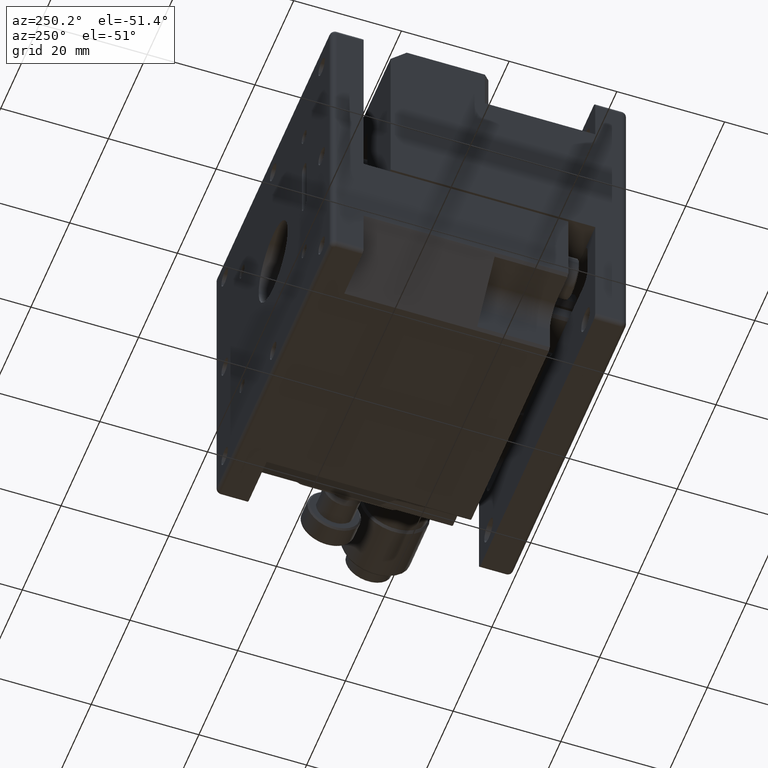
[diagram: clean part render]
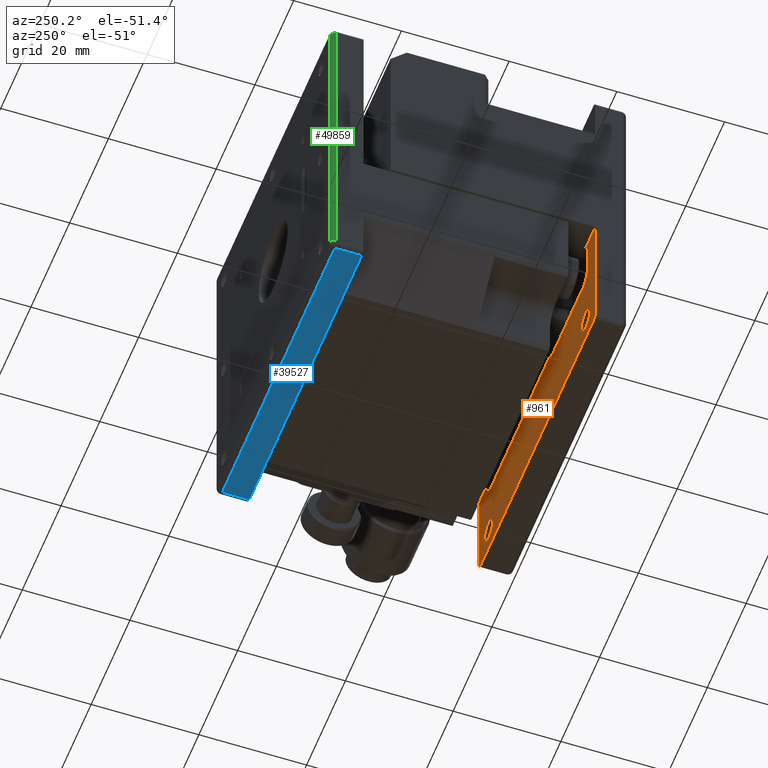
[diagram: same view with three faces highlighted in distinct colors, each labeled with its STEP entity id]
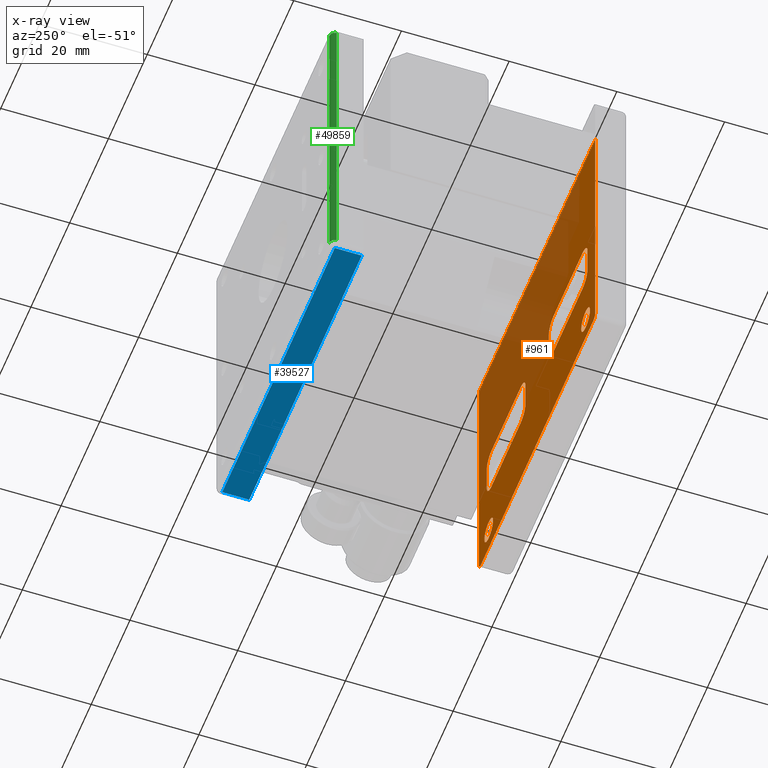
[diagram: x-ray of the same camera — body ghosted, the three highlighted faces saturated]
A machine part, auxiliary view with three faces highlighted in distinct colors.
The next image is the same camera in x-ray (body ghosted, the three faces saturated) — at least one of them is partly hidden behind the body in this view.
Their STEP definitions:

[orange] entity #961 — the highlighted planar face has unit normal (-0, 1, 0).
#617 = CARTESIAN_POINT ( 'NONE',  ( 6.000000000000000000, 6.000000000000000000, -12.00000000000000000 ) ) ;
#633 = DIRECTION ( 'NONE',  ( -5.782411586589359857E-17, 0.000000000000000000, -1.000000000000000000 ) ) ;
#856 = VERTEX_POINT ( 'NONE', #31616 ) ;
#959 = ORIENTED_EDGE ( 'NONE', *, *, #52561, .F. ) ;
#961 = ADVANCED_FACE ( 'NONE', ( #36105, #8083, #22087, #39988, #44758 ), #53394, .T. ) ;
#1074 = CARTESIAN_POINT ( 'NONE',  ( -30.00000000000000355, 6.000000000000000000, 19.50000000000000355 ) ) ;
#1132 = EDGE_CURVE ( 'NONE', #16642, #33232, #28963, .T. ) ;
#1443 = VERTEX_POINT ( 'NONE', #31354 ) ;
#1544 = ORIENTED_EDGE ( 'NONE', *, *, #6009, .F. ) ;
#1624 = VERTEX_POINT ( 'NONE', #10733 ) ;
#1665 = CARTESIAN_POINT ( 'NONE',  ( 8.500000000000000000, 6.000000000000000000, -12.00000000000000000 ) ) ;
#1955 = LINE ( 'NONE', #42256, #31972 ) ;
#2032 = DIRECTION ( 'NONE',  ( -1.000000000000000000, -1.665334536937734811E-16, 1.427168086415900007E-30 ) ) ;
#2075 = DIRECTION ( 'NONE',  ( 0.000000000000000000, 0.000000000000000000, -1.000000000000000000 ) ) ;
#2087 = CIRCLE ( 'NONE', #31660, 1.000000000000000888 ) ;
#2114 = EDGE_CURVE ( 'NONE', #51014, #24553, #54937, .T. ) ;
#2167 = DIRECTION ( 'NONE',  ( 0.000000000000000000, 1.000000000000000000, 0.000000000000000000 ) ) ;
#2366 = AXIS2_PLACEMENT_3D ( 'NONE', #47432, #43856, #48015 ) ;
#2672 = ORIENTED_EDGE ( 'NONE', *, *, #11808, .F. ) ;
#2923 = DIRECTION ( 'NONE',  ( 0.000000000000000000, 0.000000000000000000, -1.000000000000000000 ) ) ;
#3609 = CARTESIAN_POINT ( 'NONE',  ( 23.50000000000000000, 6.000000000000000000, -7.000000000000000000 ) ) ;
#3615 = DIRECTION ( 'NONE',  ( 0.000000000000000000, 0.000000000000000000, 1.000000000000000000 ) ) ;
#3880 = DIRECTION ( 'NONE',  ( -0.000000000000000000, 1.000000000000000000, 0.000000000000000000 ) ) ;
#4785 = ORIENTED_EDGE ( 'NONE', *, *, #56973, .T. ) ;
#5195 = VERTEX_POINT ( 'NONE', #23231 ) ;
#5200 = CARTESIAN_POINT ( 'NONE',  ( 23.50000000000000000, 6.000000000000000000, -4.500000000000059508 ) ) ;
#5697 = VERTEX_POINT ( 'NONE', #35756 ) ;
#5831 = VERTEX_POINT ( 'NONE', #42411 ) ;
#6009 = EDGE_CURVE ( 'NONE', #31480, #9222, #51927, .T. ) ;
#6465 = LINE ( 'NONE', #33599, #7922 ) ;
#6498 = ORIENTED_EDGE ( 'NONE', *, *, #36185, .F. ) ;
#6531 = LINE ( 'NONE', #42909, #35321 ) ;
#7136 = CIRCLE ( 'NONE', #40482, 2.249999999999998668 ) ;
#7922 = VECTOR ( 'NONE', #34187, 1000.000000000000000 ) ;
#7974 = EDGE_CURVE ( 'NONE', #20508, #5697, #2087, .T. ) ;
#8083 = FACE_BOUND ( 'NONE', #31322, .T. ) ;
#8101 = ORIENTED_EDGE ( 'NONE', *, *, #17931, .F. ) ;
#8102 = DIRECTION ( 'NONE',  ( 0.000000000000000000, 1.000000000000000000, 0.000000000000000000 ) ) ;
#8175 = CARTESIAN_POINT ( 'NONE',  ( -23.50000000000000000, 6.000000000000000000, -14.50000000000000000 ) ) ;
#8358 = VERTEX_POINT ( 'NONE', #26815 ) ;
#8841 = CARTESIAN_POINT ( 'NONE',  ( 23.50000000000000000, 6.000000000000000000, -14.50000000000000000 ) ) ;
#9048 = VERTEX_POINT ( 'NONE', #44809 ) ;
#9222 = VERTEX_POINT ( 'NONE', #29144 ) ;
#9298 = LINE ( 'NONE', #22723, #23663 ) ;
#10001 = CARTESIAN_POINT ( 'NONE',  ( -26.00000000000000000, 6.000000000000000000, -12.00000000000000000 ) ) ;
#10081 = ORIENTED_EDGE ( 'NONE', *, *, #28182, .F. ) ;
#10395 = ORIENTED_EDGE ( 'NONE', *, *, #52731, .T. ) ;
#10422 = DIRECTION ( 'NONE',  ( -5.782411586589359857E-17, 0.000000000000000000, 1.000000000000000000 ) ) ;
#10532 = CARTESIAN_POINT ( 'NONE',  ( -6.000000000000000000, 6.000000000000000000, -12.00000000000000000 ) ) ;
#10645 = EDGE_CURVE ( 'NONE', #9048, #31480, #36234, .T. ) ;
#10733 = CARTESIAN_POINT ( 'NONE',  ( 6.000000000000000000, 6.000000000000000000, -7.000000000000000000 ) ) ;
#10766 = CIRCLE ( 'NONE', #52706, 2.500000000000000444 ) ;
#10984 = CARTESIAN_POINT ( 'NONE',  ( -23.50000000000000000, 6.000000000000000000, -12.00000000000000000 ) ) ;
#11273 = EDGE_LOOP ( 'NONE', ( #6498, #54594, #38344, #45967, #17905, #51766, #36612, #49857 ) ) ;
#11808 = EDGE_CURVE ( 'NONE', #1624, #9048, #25231, .T. ) ;
#12061 = AXIS2_PLACEMENT_3D ( 'NONE', #43042, #2167, #33789 ) ;
#13102 = EDGE_CURVE ( 'NONE', #34267, #16642, #1955, .T. ) ;
#13276 = DIRECTION ( 'NONE',  ( 0.000000000000000000, 0.000000000000000000, 1.000000000000000000 ) ) ;
#13328 = VECTOR ( 'NONE', #37019, 1000.000000000000000 ) ;
#13330 = CARTESIAN_POINT ( 'NONE',  ( -23.50000000000000000, 6.000000000000000000, -7.000000000000000000 ) ) ;
#13423 = CARTESIAN_POINT ( 'NONE',  ( -26.00000000000000000, 6.000000000000000000, -12.00000000000000000 ) ) ;
#13632 = AXIS2_PLACEMENT_3D ( 'NONE', #16744, #8102, #3615 ) ;
#13885 = EDGE_CURVE ( 'NONE', #24553, #1443, #30748, .T. ) ;
#14192 = EDGE_CURVE ( 'NONE', #34364, #5195, #44292, .T. ) ;
#15658 = AXIS2_PLACEMENT_3D ( 'NONE', #10984, #47365, #2923 ) ;
#15887 = CARTESIAN_POINT ( 'NONE',  ( -30.00000000000000000, 6.000000000000000000, -30.00000000000000000 ) ) ;
#16500 = LINE ( 'NONE', #13423, #32842 ) ;
#16633 = AXIS2_PLACEMENT_3D ( 'NONE', #27134, #3880, #45342 ) ;
#16642 = VERTEX_POINT ( 'NONE', #8175 ) ;
#16744 = CARTESIAN_POINT ( 'NONE',  ( -25.00000000000000000, 6.000000000000000000, -25.00000000000000000 ) ) ;
#16807 = CIRCLE ( 'NONE', #40614, 1.000000000000000888 ) ;
#16837 = VECTOR ( 'NONE', #633, 1000.000000000000000 ) ;
#17149 = EDGE_LOOP ( 'NONE', ( #10081, #25499, #1544, #19358, #2672, #33930, #31852, #48022 ) ) ;
#17155 = DIRECTION ( 'NONE',  ( 0.000000000000000000, 1.000000000000000000, 0.000000000000000000 ) ) ;
#17184 = DIRECTION ( 'NONE',  ( 0.000000000000000000, 1.000000000000000000, 0.000000000000000000 ) ) ;
#17374 = CARTESIAN_POINT ( 'NONE',  ( 30.00000000000000355, 6.000000000000000000, 19.50000000000000355 ) ) ;
#17510 = DIRECTION ( 'NONE',  ( 0.000000000000000000, 1.000000000000000000, 0.000000000000000000 ) ) ;
#17692 = VECTOR ( 'NONE', #46378, 1000.000000000000000 ) ;
#17905 = ORIENTED_EDGE ( 'NONE', *, *, #2114, .F. ) ;
#17931 = EDGE_CURVE ( 'NONE', #44964, #53875, #6531, .T. ) ;
#18074 = LINE ( 'NONE', #8841, #17692 ) ;
#18168 = ORIENTED_EDGE ( 'NONE', *, *, #53347, .T. ) ;
#18192 = EDGE_LOOP ( 'NONE', ( #40844, #42029 ) ) ;
#18389 = EDGE_CURVE ( 'NONE', #856, #32609, #32252, .T. ) ;
#19358 = ORIENTED_EDGE ( 'NONE', *, *, #10645, .F. ) ;
#19665 = CARTESIAN_POINT ( 'NONE',  ( -30.00000000000000000, 6.000000000000000000, -30.00000000000000000 ) ) ;
#20508 = VERTEX_POINT ( 'NONE', #22782 ) ;
#20573 = CARTESIAN_POINT ( 'NONE',  ( -8.500000000000000000, 6.000000000000000000, -7.000000000000000000 ) ) ;
#20909 = CARTESIAN_POINT ( 'NONE',  ( -23.50000000000000000, 6.000000000000000000, -4.500000000000000000 ) ) ;
#21041 = EDGE_CURVE ( 'NONE', #32609, #1624, #23297, .T. ) ;
#21513 = DIRECTION ( 'NONE',  ( 0.000000000000000000, 0.000000000000000000, 1.000000000000000000 ) ) ;
#21785 = AXIS2_PLACEMENT_3D ( 'NONE', #1665, #42254, #41384 ) ;
#22087 = FACE_BOUND ( 'NONE', #17149, .T. ) ;
#22193 = CARTESIAN_POINT ( 'NONE',  ( 23.50000000000000000, 6.000000000000000000, -4.500000000000059508 ) ) ;
#22211 = EDGE_CURVE ( 'NONE', #1443, #53644, #40070, .T. ) ;
#22397 = DIRECTION ( 'NONE',  ( 0.000000000000000000, 1.000000000000000000, 0.000000000000000000 ) ) ;
#22517 = DIRECTION ( 'NONE',  ( 1.000000000000000000, 0.000000000000000000, 2.312964634635744929E-16 ) ) ;
#22723 = CARTESIAN_POINT ( 'NONE',  ( 26.00000000000000000, 6.000000000000000000, -12.00000000000000000 ) ) ;
#22782 = CARTESIAN_POINT ( 'NONE',  ( -29.00000000000000000, 6.000000000000000000, -30.00000000000000000 ) ) ;
#23178 = DIRECTION ( 'NONE',  ( 0.000000000000000000, 0.000000000000000000, 1.000000000000000000 ) ) ;
#23231 = CARTESIAN_POINT ( 'NONE',  ( 25.00000000000000000, 6.000000000000000000, -22.75000000000000000 ) ) ;
#23297 = LINE ( 'NONE', #617, #13328 ) ;
#23311 = LINE ( 'NONE', #32840, #16837 ) ;
#23511 = AXIS2_PLACEMENT_3D ( 'NONE', #13330, #17510, #31512 ) ;
#23663 = VECTOR ( 'NONE', #36151, 1000.000000000000000 ) ;
#23704 = DIRECTION ( 'NONE',  ( 0.000000000000000000, 0.000000000000000000, 1.000000000000000000 ) ) ;
#24553 = VERTEX_POINT ( 'NONE', #42560 ) ;
#25231 = CIRCLE ( 'NONE', #2366, 2.499999999999999556 ) ;
#25499 = ORIENTED_EDGE ( 'NONE', *, *, #57265, .F. ) ;
#26067 = CARTESIAN_POINT ( 'NONE',  ( 23.50000000000000000, 6.000000000000000000, -14.50000000000000000 ) ) ;
#26181 = AXIS2_PLACEMENT_3D ( 'NONE', #40717, #17155, #13276 ) ;
#26433 = CARTESIAN_POINT ( 'NONE',  ( 23.50000000000000000, 6.000000000000000000, -12.00000000000000000 ) ) ;
#26815 = CARTESIAN_POINT ( 'NONE',  ( -25.00000000000000000, 6.000000000000000000, -22.75000000000000000 ) ) ;
#27037 = CARTESIAN_POINT ( 'NONE',  ( -8.500000000000000000, 6.000000000000000000, -14.50000000000000000 ) ) ;
#27134 = CARTESIAN_POINT ( 'NONE',  ( -30.00000000000000000, 6.000000000000000000, 30.00000000000000000 ) ) ;
#27305 = CIRCLE ( 'NONE', #12061, 2.249999999999998668 ) ;
#28119 = AXIS2_PLACEMENT_3D ( 'NONE', #3609, #22397, #21513 ) ;
#28182 = EDGE_CURVE ( 'NONE', #40015, #37480, #54435, .T. ) ;
#28338 = VERTEX_POINT ( 'NONE', #45793 ) ;
#28963 = CIRCLE ( 'NONE', #15658, 2.500000000000000444 ) ;
#29144 = CARTESIAN_POINT ( 'NONE',  ( 26.00000000000000000, 6.000000000000000000, -7.000000000000000000 ) ) ;
#30748 = LINE ( 'NONE', #20909, #36669 ) ;
#30856 = VECTOR ( 'NONE', #22517, 1000.000000000000000 ) ;
#31322 = EDGE_LOOP ( 'NONE', ( #959, #41960 ) ) ;
#31354 = CARTESIAN_POINT ( 'NONE',  ( -8.500000000000000000, 6.000000000000000000, -4.500000000000000000 ) ) ;
#31480 = VERTEX_POINT ( 'NONE', #22193 ) ;
#31506 = AXIS2_PLACEMENT_3D ( 'NONE', #20573, #52777, #2075 ) ;
#31512 = DIRECTION ( 'NONE',  ( 0.000000000000000000, 0.000000000000000000, -1.000000000000000000 ) ) ;
#31616 = CARTESIAN_POINT ( 'NONE',  ( 8.500000000000000000, 6.000000000000000000, -14.50000000000000000 ) ) ;
#31660 = AXIS2_PLACEMENT_3D ( 'NONE', #39424, #57625, #34954 ) ;
#31852 = ORIENTED_EDGE ( 'NONE', *, *, #18389, .F. ) ;
#31972 = VECTOR ( 'NONE', #52663, 1000.000000000000000 ) ;
#32252 = CIRCLE ( 'NONE', #21785, 2.500000000000000444 ) ;
#32609 = VERTEX_POINT ( 'NONE', #33168 ) ;
#32731 = CARTESIAN_POINT ( 'NONE',  ( -26.00000000000000000, 6.000000000000000000, -7.000000000000000000 ) ) ;
#32812 = ORIENTED_EDGE ( 'NONE', *, *, #38994, .T. ) ;
#32840 = CARTESIAN_POINT ( 'NONE',  ( 30.00000000000000000, 6.000000000000000000, -30.00000000000000000 ) ) ;
#32842 = VECTOR ( 'NONE', #43353, 1000.000000000000000 ) ;
#33051 = VECTOR ( 'NONE', #10422, 1000.000000000000000 ) ;
#33168 = CARTESIAN_POINT ( 'NONE',  ( 6.000000000000000000, 6.000000000000000000, -12.00000000000000000 ) ) ;
#33232 = VERTEX_POINT ( 'NONE', #10001 ) ;
#33492 = LINE ( 'NONE', #15887, #55089 ) ;
#33599 = CARTESIAN_POINT ( 'NONE',  ( -6.000000000000000000, 6.000000000000000000, -12.00000000000000000 ) ) ;
#33789 = DIRECTION ( 'NONE',  ( 0.000000000000000000, 0.000000000000000000, 1.000000000000000000 ) ) ;
#33930 = ORIENTED_EDGE ( 'NONE', *, *, #21041, .F. ) ;
#34187 = DIRECTION ( 'NONE',  ( 0.000000000000000000, 0.000000000000000000, -1.000000000000000000 ) ) ;
#34267 = VERTEX_POINT ( 'NONE', #27037 ) ;
#34364 = VERTEX_POINT ( 'NONE', #55648 ) ;
#34954 = DIRECTION ( 'NONE',  ( 0.000000000000000000, 0.000000000000000000, 1.000000000000000000 ) ) ;
#35321 = VECTOR ( 'NONE', #2032, 1000.000000000000000 ) ;
#35756 = CARTESIAN_POINT ( 'NONE',  ( -30.00000000000000000, 6.000000000000000000, -29.00000000000000000 ) ) ;
#36105 = FACE_BOUND ( 'NONE', #18192, .T. ) ;
#36151 = DIRECTION ( 'NONE',  ( 0.000000000000000000, 0.000000000000000000, -1.000000000000000000 ) ) ;
#36185 = EDGE_CURVE ( 'NONE', #54223, #34267, #10766, .T. ) ;
#36234 = LINE ( 'NONE', #5200, #30856 ) ;
#36495 = EDGE_CURVE ( 'NONE', #8358, #28338, #38408, .T. ) ;
#36612 = ORIENTED_EDGE ( 'NONE', *, *, #1132, .F. ) ;
#36669 = VECTOR ( 'NONE', #39107, 1000.000000000000000 ) ;
#37019 = DIRECTION ( 'NONE',  ( 0.000000000000000000, 0.000000000000000000, 1.000000000000000000 ) ) ;
#37135 = CARTESIAN_POINT ( 'NONE',  ( -8.500000000000000000, 6.000000000000000000, -12.00000000000000000 ) ) ;
#37480 = VERTEX_POINT ( 'NONE', #26067 ) ;
#38344 = ORIENTED_EDGE ( 'NONE', *, *, #22211, .F. ) ;
#38408 = CIRCLE ( 'NONE', #13632, 2.249999999999998668 ) ;
#38575 = CARTESIAN_POINT ( 'NONE',  ( 30.00000000000000000, 6.000000000000000000, -29.00000000000000000 ) ) ;
#38994 = EDGE_CURVE ( 'NONE', #5697, #53875, #51870, .T. ) ;
#39107 = DIRECTION ( 'NONE',  ( 1.000000000000000000, 0.000000000000000000, -2.312964634635744929E-16 ) ) ;
#39424 = CARTESIAN_POINT ( 'NONE',  ( -29.00000000000000000, 6.000000000000000000, -29.00000000000000000 ) ) ;
#39988 = FACE_BOUND ( 'NONE', #11273, .T. ) ;
#40015 = VERTEX_POINT ( 'NONE', #54544 ) ;
#40070 = CIRCLE ( 'NONE', #31506, 2.499999999999999556 ) ;
#40482 = AXIS2_PLACEMENT_3D ( 'NONE', #55312, #46357, #58921 ) ;
#40614 = AXIS2_PLACEMENT_3D ( 'NONE', #55664, #45835, #23178 ) ;
#40717 = CARTESIAN_POINT ( 'NONE',  ( 25.00000000000000000, 6.000000000000000000, -25.00000000000000000 ) ) ;
#40844 = ORIENTED_EDGE ( 'NONE', *, *, #36495, .F. ) ;
#40927 = VERTEX_POINT ( 'NONE', #38575 ) ;
#41384 = DIRECTION ( 'NONE',  ( 0.000000000000000000, 0.000000000000000000, -1.000000000000000000 ) ) ;
#41960 = ORIENTED_EDGE ( 'NONE', *, *, #14192, .F. ) ;
#42029 = ORIENTED_EDGE ( 'NONE', *, *, #47486, .F. ) ;
#42135 = EDGE_LOOP ( 'NONE', ( #8101, #10395, #18168, #4785, #44973, #32812 ) ) ;
#42192 = DIRECTION ( 'NONE',  ( 0.000000000000000000, 1.000000000000000000, 0.000000000000000000 ) ) ;
#42254 = DIRECTION ( 'NONE',  ( 0.000000000000000000, 1.000000000000000000, 0.000000000000000000 ) ) ;
#42256 = CARTESIAN_POINT ( 'NONE',  ( -23.50000000000000000, 6.000000000000000000, -14.50000000000000000 ) ) ;
#42411 = CARTESIAN_POINT ( 'NONE',  ( 29.00000000000000000, 6.000000000000000000, -30.00000000000000000 ) ) ;
#42560 = CARTESIAN_POINT ( 'NONE',  ( -23.50000000000000000, 6.000000000000000000, -4.500000000000000000 ) ) ;
#42909 = CARTESIAN_POINT ( 'NONE',  ( 30.00000000000000000, 6.000000000000000000, 19.50000000000000000 ) ) ;
#43042 = CARTESIAN_POINT ( 'NONE',  ( 25.00000000000000000, 6.000000000000000000, -25.00000000000000000 ) ) ;
#43056 = EDGE_CURVE ( 'NONE', #53644, #54223, #6465, .T. ) ;
#43353 = DIRECTION ( 'NONE',  ( 0.000000000000000000, 0.000000000000000000, 1.000000000000000000 ) ) ;
#43856 = DIRECTION ( 'NONE',  ( 0.000000000000000000, 1.000000000000000000, 0.000000000000000000 ) ) ;
#44292 = CIRCLE ( 'NONE', #26181, 2.249999999999998668 ) ;
#44758 = FACE_OUTER_BOUND ( 'NONE', #42135, .T. ) ;
#44809 = CARTESIAN_POINT ( 'NONE',  ( 8.500000000000000000, 6.000000000000000000, -4.500000000000059508 ) ) ;
#44964 = VERTEX_POINT ( 'NONE', #17374 ) ;
#44973 = ORIENTED_EDGE ( 'NONE', *, *, #7974, .T. ) ;
#45050 = CARTESIAN_POINT ( 'NONE',  ( -6.000000000000000000, 6.000000000000000000, -7.000000000000000000 ) ) ;
#45342 = DIRECTION ( 'NONE',  ( 1.000000000000000000, 0.000000000000000000, 0.000000000000000000 ) ) ;
#45793 = CARTESIAN_POINT ( 'NONE',  ( -25.00000000000000000, 6.000000000000000000, -27.25000000000000000 ) ) ;
#45835 = DIRECTION ( 'NONE',  ( 0.000000000000000000, 1.000000000000000000, 0.000000000000000000 ) ) ;
#45967 = ORIENTED_EDGE ( 'NONE', *, *, #13885, .F. ) ;
#46357 = DIRECTION ( 'NONE',  ( 0.000000000000000000, 1.000000000000000000, 0.000000000000000000 ) ) ;
#46378 = DIRECTION ( 'NONE',  ( -1.000000000000000000, 0.000000000000000000, 0.000000000000000000 ) ) ;
#46960 = EDGE_CURVE ( 'NONE', #33232, #51014, #16500, .T. ) ;
#47365 = DIRECTION ( 'NONE',  ( 0.000000000000000000, 1.000000000000000000, 0.000000000000000000 ) ) ;
#47432 = CARTESIAN_POINT ( 'NONE',  ( 8.500000000000000000, 6.000000000000000000, -7.000000000000000000 ) ) ;
#47486 = EDGE_CURVE ( 'NONE', #28338, #8358, #7136, .T. ) ;
#48015 = DIRECTION ( 'NONE',  ( 0.000000000000000000, 0.000000000000000000, 1.000000000000000000 ) ) ;
#48022 = ORIENTED_EDGE ( 'NONE', *, *, #49130, .F. ) ;
#49130 = EDGE_CURVE ( 'NONE', #37480, #856, #18074, .T. ) ;
#49857 = ORIENTED_EDGE ( 'NONE', *, *, #13102, .F. ) ;
#51014 = VERTEX_POINT ( 'NONE', #32731 ) ;
#51570 = AXIS2_PLACEMENT_3D ( 'NONE', #26433, #17184, #57163 ) ;
#51766 = ORIENTED_EDGE ( 'NONE', *, *, #46960, .F. ) ;
#51870 = LINE ( 'NONE', #19665, #33051 ) ;
#51927 = CIRCLE ( 'NONE', #28119, 2.499999999999999556 ) ;
#51975 = DIRECTION ( 'NONE',  ( -1.000000000000000000, 0.000000000000000000, 0.000000000000000000 ) ) ;
#52561 = EDGE_CURVE ( 'NONE', #5195, #34364, #27305, .T. ) ;
#52663 = DIRECTION ( 'NONE',  ( -1.000000000000000000, 0.000000000000000000, 0.000000000000000000 ) ) ;
#52706 = AXIS2_PLACEMENT_3D ( 'NONE', #37135, #42192, #23704 ) ;
#52731 = EDGE_CURVE ( 'NONE', #44964, #40927, #23311, .T. ) ;
#52777 = DIRECTION ( 'NONE',  ( 0.000000000000000000, 1.000000000000000000, 0.000000000000000000 ) ) ;
#53347 = EDGE_CURVE ( 'NONE', #40927, #5831, #16807, .T. ) ;
#53394 = PLANE ( 'NONE',  #16633 ) ;
#53644 = VERTEX_POINT ( 'NONE', #45050 ) ;
#53875 = VERTEX_POINT ( 'NONE', #1074 ) ;
#54223 = VERTEX_POINT ( 'NONE', #10532 ) ;
#54435 = CIRCLE ( 'NONE', #51570, 2.500000000000000444 ) ;
#54544 = CARTESIAN_POINT ( 'NONE',  ( 26.00000000000000000, 6.000000000000000000, -12.00000000000000000 ) ) ;
#54594 = ORIENTED_EDGE ( 'NONE', *, *, #43056, .F. ) ;
#54937 = CIRCLE ( 'NONE', #23511, 2.499999999999999556 ) ;
#55089 = VECTOR ( 'NONE', #51975, 1000.000000000000000 ) ;
#55312 = CARTESIAN_POINT ( 'NONE',  ( -25.00000000000000000, 6.000000000000000000, -25.00000000000000000 ) ) ;
#55648 = CARTESIAN_POINT ( 'NONE',  ( 25.00000000000000000, 6.000000000000000000, -27.25000000000000000 ) ) ;
#55664 = CARTESIAN_POINT ( 'NONE',  ( 29.00000000000000000, 6.000000000000000000, -29.00000000000000000 ) ) ;
#56973 = EDGE_CURVE ( 'NONE', #5831, #20508, #33492, .T. ) ;
#57163 = DIRECTION ( 'NONE',  ( 0.000000000000000000, 0.000000000000000000, 1.000000000000000000 ) ) ;
#57265 = EDGE_CURVE ( 'NONE', #9222, #40015, #9298, .T. ) ;
#57625 = DIRECTION ( 'NONE',  ( 0.000000000000000000, 1.000000000000000000, 0.000000000000000000 ) ) ;
#58921 = DIRECTION ( 'NONE',  ( 0.000000000000000000, 0.000000000000000000, 1.000000000000000000 ) ) ;

[blue] entity #39527 — the highlighted planar face has unit normal (0, 0, 1).
#380 = DIRECTION ( 'NONE',  ( 1.000000000000000000, 0.000000000000000000, 0.000000000000000000 ) ) ;
#671 = DIRECTION ( 'NONE',  ( 0.000000000000000000, 0.000000000000000000, 1.000000000000000000 ) ) ;
#686 = CARTESIAN_POINT ( 'NONE',  ( -28.96428534805954769, 55.00000000000000000, -30.00000000000000000 ) ) ;
#1344 = EDGE_CURVE ( 'NONE', #21166, #28136, #11392, .T. ) ;
#5391 = CARTESIAN_POINT ( 'NONE',  ( 29.03571465194044876, 54.00000000000000000, -30.00000000000000000 ) ) ;
#6924 = VERTEX_POINT ( 'NONE', #27522 ) ;
#6943 = LINE ( 'NONE', #33488, #54954 ) ;
#9050 = PLANE ( 'NONE',  #13986 ) ;
#10132 = ORIENTED_EDGE ( 'NONE', *, *, #22712, .T. ) ;
#10886 = VECTOR ( 'NONE', #57923, 1000.000000000000000 ) ;
#11392 = LINE ( 'NONE', #34064, #10886 ) ;
#11648 = LINE ( 'NONE', #52501, #18805 ) ;
#13986 = AXIS2_PLACEMENT_3D ( 'NONE', #18580, #671, #380 ) ;
#17210 = CARTESIAN_POINT ( 'NONE',  ( 30.03571465194044876, 54.00000000000000000, -30.00000000000000000 ) ) ;
#18580 = CARTESIAN_POINT ( 'NONE',  ( -29.96428534805955124, 55.00000000000000000, -30.00000000000000000 ) ) ;
#18805 = VECTOR ( 'NONE', #30429, 1000.000000000000000 ) ;
#18945 = EDGE_CURVE ( 'NONE', #28136, #42149, #30306, .T. ) ;
#20547 = EDGE_CURVE ( 'NONE', #56214, #42955, #27829, .T. ) ;
#21166 = VERTEX_POINT ( 'NONE', #5391 ) ;
#21533 = ORIENTED_EDGE ( 'NONE', *, *, #20547, .T. ) ;
#22712 = EDGE_CURVE ( 'NONE', #42955, #21166, #35714, .T. ) ;
#24717 = VECTOR ( 'NONE', #36510, 1000.000000000000000 ) ;
#25120 = DIRECTION ( 'NONE',  ( -1.000000000000000000, 1.672898480240784930E-18, -1.769417945496345011E-15 ) ) ;
#25239 = CARTESIAN_POINT ( 'NONE',  ( 29.03571465194044876, 49.00000000000000000, -30.00000000000000000 ) ) ;
#27522 = CARTESIAN_POINT ( 'NONE',  ( -19.96428534805919952, 49.00000000000000000, -30.00000000000000000 ) ) ;
#27829 = LINE ( 'NONE', #686, #24717 ) ;
#28136 = VERTEX_POINT ( 'NONE', #25239 ) ;
#29408 = DIRECTION ( 'NONE',  ( -1.000000000000000000, 0.000000000000000000, 0.000000000000000000 ) ) ;
#30306 = LINE ( 'NONE', #42851, #30365 ) ;
#30365 = VECTOR ( 'NONE', #29408, 1000.000000000000000 ) ;
#30429 = DIRECTION ( 'NONE',  ( -1.000000000000000000, 0.000000000000000000, 0.000000000000000000 ) ) ;
#33488 = CARTESIAN_POINT ( 'NONE',  ( -29.96428534805919952, 49.00000000000000000, -30.00000000000000000 ) ) ;
#34064 = CARTESIAN_POINT ( 'NONE',  ( 29.03571465194044876, 55.00000000000000000, -30.00000000000000000 ) ) ;
#35714 = LINE ( 'NONE', #17210, #53435 ) ;
#36510 = DIRECTION ( 'NONE',  ( 0.000000000000000000, 1.000000000000000000, 0.000000000000000000 ) ) ;
#37310 = ORIENTED_EDGE ( 'NONE', *, *, #18945, .T. ) ;
#39527 = ADVANCED_FACE ( 'NONE', ( #50788 ), #9050, .F. ) ;
#39596 = DIRECTION ( 'NONE',  ( 1.000000000000000000, 0.000000000000000000, 0.000000000000000000 ) ) ;
#41672 = CARTESIAN_POINT ( 'NONE',  ( 20.03571465194075074, 49.00000000000000000, -30.00000000000000000 ) ) ;
#42149 = VERTEX_POINT ( 'NONE', #41672 ) ;
#42851 = CARTESIAN_POINT ( 'NONE',  ( -29.96428534805955124, 49.00000000000000000, -30.00000000000000000 ) ) ;
#42955 = VERTEX_POINT ( 'NONE', #49756 ) ;
#49756 = CARTESIAN_POINT ( 'NONE',  ( -28.96428534805954769, 54.00000000000000000, -30.00000000000000000 ) ) ;
#50510 = EDGE_CURVE ( 'NONE', #42149, #6924, #6943, .T. ) ;
#50788 = FACE_OUTER_BOUND ( 'NONE', #55931, .T. ) ;
#52055 = ORIENTED_EDGE ( 'NONE', *, *, #55051, .T. ) ;
#52501 = CARTESIAN_POINT ( 'NONE',  ( -29.96428534805955124, 49.00000000000000000, -30.00000000000000000 ) ) ;
#53435 = VECTOR ( 'NONE', #39596, 1000.000000000000000 ) ;
#54147 = CARTESIAN_POINT ( 'NONE',  ( -28.96428534805954769, 49.00000000000000000, -30.00000000000000000 ) ) ;
#54954 = VECTOR ( 'NONE', #25120, 1000.000000000000000 ) ;
#55051 = EDGE_CURVE ( 'NONE', #6924, #56214, #11648, .T. ) ;
#55931 = EDGE_LOOP ( 'NONE', ( #37310, #56854, #52055, #21533, #10132, #58767 ) ) ;
#56214 = VERTEX_POINT ( 'NONE', #54147 ) ;
#56854 = ORIENTED_EDGE ( 'NONE', *, *, #50510, .T. ) ;
#57923 = DIRECTION ( 'NONE',  ( 0.000000000000000000, -1.000000000000000000, 0.000000000000000000 ) ) ;
#58767 = ORIENTED_EDGE ( 'NONE', *, *, #1344, .T. ) ;

[green] entity #49859 — the highlighted cylindrical surface (edge-blend (fillet) strip) has radius 1 mm, axis along (0, 0, -1).
#2139 = ORIENTED_EDGE ( 'NONE', *, *, #44475, .F. ) ;
#2469 = CIRCLE ( 'NONE', #46296, 1.000000000000000888 ) ;
#3636 = DIRECTION ( 'NONE',  ( -1.000000000000000000, 0.000000000000000000, 0.000000000000000000 ) ) ;
#4699 = LINE ( 'NONE', #27938, #19505 ) ;
#5282 = DIRECTION ( 'NONE',  ( 5.782411586589359857E-17, 0.000000000000000000, -1.000000000000000000 ) ) ;
#11669 = VERTEX_POINT ( 'NONE', #37333 ) ;
#12293 = CYLINDRICAL_SURFACE ( 'NONE', #43488, 1.000000000000000888 ) ;
#12600 = CARTESIAN_POINT ( 'NONE',  ( -29.96428534805955124, 54.00000000000000000, 29.00000000000000000 ) ) ;
#13887 = CARTESIAN_POINT ( 'NONE',  ( -28.96428534805954769, 54.00000000000000000, -29.00000000000000000 ) ) ;
#17444 = AXIS2_PLACEMENT_3D ( 'NONE', #33935, #56613, #21105 ) ;
#18025 = CARTESIAN_POINT ( 'NONE',  ( -28.96428534805954769, 55.00000000000000000, -29.00000000000000000 ) ) ;
#19505 = VECTOR ( 'NONE', #5282, 1000.000000000000000 ) ;
#19793 = EDGE_CURVE ( 'NONE', #51138, #11669, #22267, .T. ) ;
#21105 = DIRECTION ( 'NONE',  ( 1.000000000000000000, 0.000000000000000000, 0.000000000000000000 ) ) ;
#21834 = CARTESIAN_POINT ( 'NONE',  ( -28.96428534805954769, 54.00000000000000000, 30.00000000000000000 ) ) ;
#22267 = LINE ( 'NONE', #40458, #58977 ) ;
#23142 = DIRECTION ( 'NONE',  ( -1.000000000000000000, 0.000000000000000000, 0.000000000000000000 ) ) ;
#27938 = CARTESIAN_POINT ( 'NONE',  ( -29.96428534805955124, 54.00000000000000000, -30.00000000000000000 ) ) ;
#30770 = FACE_OUTER_BOUND ( 'NONE', #41496, .T. ) ;
#31786 = DIRECTION ( 'NONE',  ( 0.000000000000000000, 0.000000000000000000, 1.000000000000000000 ) ) ;
#33915 = ORIENTED_EDGE ( 'NONE', *, *, #47358, .F. ) ;
#33935 = CARTESIAN_POINT ( 'NONE',  ( -28.96428534805954769, 54.00000000000000000, 29.00000000000000000 ) ) ;
#37333 = CARTESIAN_POINT ( 'NONE',  ( -28.96428534805954769, 55.00000000000000000, 29.00000000000000000 ) ) ;
#40458 = CARTESIAN_POINT ( 'NONE',  ( -28.96428534805954769, 55.00000000000000000, 30.00000000000000000 ) ) ;
#41496 = EDGE_LOOP ( 'NONE', ( #49758, #33915, #2139, #44600 ) ) ;
#43162 = CIRCLE ( 'NONE', #17444, 1.000000000000000888 ) ;
#43266 = CARTESIAN_POINT ( 'NONE',  ( -29.96428534805955124, 54.00000000000000000, -29.00000000000000000 ) ) ;
#43488 = AXIS2_PLACEMENT_3D ( 'NONE', #21834, #53151, #3636 ) ;
#44475 = EDGE_CURVE ( 'NONE', #11669, #57181, #43162, .T. ) ;
#44600 = ORIENTED_EDGE ( 'NONE', *, *, #19793, .F. ) ;
#46296 = AXIS2_PLACEMENT_3D ( 'NONE', #13887, #31786, #23142 ) ;
#47358 = EDGE_CURVE ( 'NONE', #57181, #54298, #4699, .T. ) ;
#49200 = EDGE_CURVE ( 'NONE', #51138, #54298, #2469, .T. ) ;
#49758 = ORIENTED_EDGE ( 'NONE', *, *, #49200, .T. ) ;
#49859 = ADVANCED_FACE ( 'NONE', ( #30770 ), #12293, .T. ) ;
#49987 = DIRECTION ( 'NONE',  ( -5.782411586589359857E-17, 0.000000000000000000, 1.000000000000000000 ) ) ;
#51138 = VERTEX_POINT ( 'NONE', #18025 ) ;
#53151 = DIRECTION ( 'NONE',  ( 0.000000000000000000, 0.000000000000000000, -1.000000000000000000 ) ) ;
#54298 = VERTEX_POINT ( 'NONE', #43266 ) ;
#56613 = DIRECTION ( 'NONE',  ( 0.000000000000000000, 0.000000000000000000, 1.000000000000000000 ) ) ;
#57181 = VERTEX_POINT ( 'NONE', #12600 ) ;
#58977 = VECTOR ( 'NONE', #49987, 1000.000000000000000 ) ;